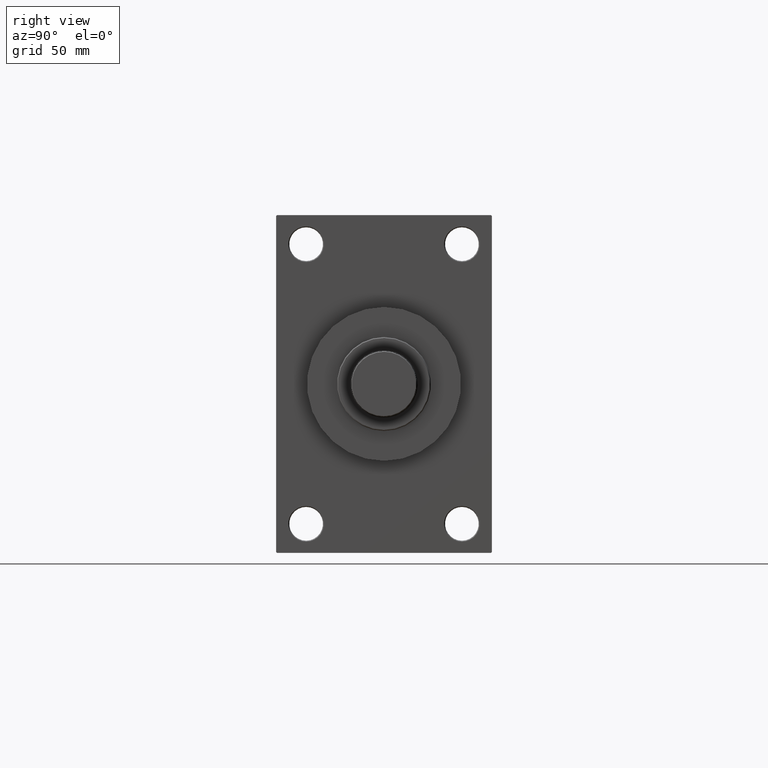
[diagram: clean part render]
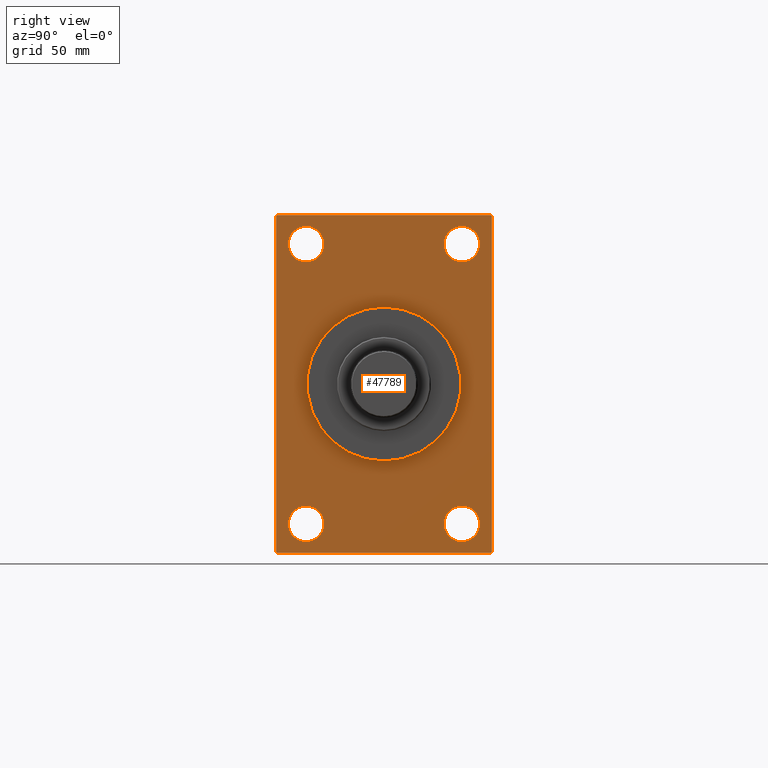
[diagram: same view with one face highlighted and labeled with its STEP entity id]
A machine part, right view. The second image highlights one B-rep face of the part: STEP entity #47789.
In plain terms, the highlighted planar face has unit normal (-1, 0, 0).
Its self-contained STEP definition (entity closure, byte-faithful):
#617 = CARTESIAN_POINT ( 'NONE',  ( 218.9999999999999716, 41.49999999999999289, 65.00000000000011369 ) ) ;
#693 = VERTEX_POINT ( 'NONE', #33230 ) ;
#805 = CARTESIAN_POINT ( 'NONE',  ( 218.9999999999999716, -57.50000000000000000, 90.00000000000000000 ) ) ;
#810 = DIRECTION ( 'NONE',  ( 0.000000000000000000, 0.000000000000000000, 1.000000000000000000 ) ) ;
#1096 = CIRCLE ( 'NONE', #46957, 41.00000000000000000 ) ;
#1108 = LINE ( 'NONE', #44933, #26154 ) ;
#1385 = ORIENTED_EDGE ( 'NONE', *, *, #24750, .T. ) ;
#1878 = EDGE_CURVE ( 'NONE', #3212, #36884, #13447, .T. ) ;
#2419 = CARTESIAN_POINT ( 'NONE',  ( 218.9999999999999716, 41.49999999999999289, 83.99999999999991473 ) ) ;
#3212 = VERTEX_POINT ( 'NONE', #38403 ) ;
#4028 = LINE ( 'NONE', #37607, #23377 ) ;
#4260 = DIRECTION ( 'NONE',  ( 0.000000000000000000, -1.000000000000000000, 0.000000000000000000 ) ) ;
#4448 = DIRECTION ( 'NONE',  ( -1.000000000000000000, -0.000000000000000000, -0.000000000000000000 ) ) ;
#4660 = CIRCLE ( 'NONE', #41986, 9.499999999999980460 ) ;
#5087 = ORIENTED_EDGE ( 'NONE', *, *, #29829, .T. ) ;
#5157 = CARTESIAN_POINT ( 'NONE',  ( 218.9999999999999716, -56.99999999999997158, -90.00000000000000000 ) ) ;
#5437 = VERTEX_POINT ( 'NONE', #39031 ) ;
#5476 = LINE ( 'NONE', #13254, #37720 ) ;
#6709 = CARTESIAN_POINT ( 'NONE',  ( 218.9999999999999716, 56.99999999999994316, -90.00000000000000000 ) ) ;
#7332 = ORIENTED_EDGE ( 'NONE', *, *, #21273, .T. ) ;
#8671 = FACE_BOUND ( 'NONE', #38675, .T. ) ;
#8806 = AXIS2_PLACEMENT_3D ( 'NONE', #15628, #44850, #19541 ) ;
#8872 = AXIS2_PLACEMENT_3D ( 'NONE', #42550, #41844, #9204 ) ;
#9204 = DIRECTION ( 'NONE',  ( 0.000000000000000000, 0.000000000000000000, 1.000000000000000000 ) ) ;
#9211 = VECTOR ( 'NONE', #15640, 1000.000000000000000 ) ;
#9282 = AXIS2_PLACEMENT_3D ( 'NONE', #27912, #45686, #12313 ) ;
#9495 = EDGE_CURVE ( 'NONE', #37061, #44568, #1108, .T. ) ;
#9554 = CARTESIAN_POINT ( 'NONE',  ( 218.9999999999999716, 0.000000000000000000, 0.000000000000000000 ) ) ;
#9972 = VERTEX_POINT ( 'NONE', #11877 ) ;
#10176 = CARTESIAN_POINT ( 'NONE',  ( 218.9999999999999716, -41.50000000000000711, -83.99999999999995737 ) ) ;
#10499 = VERTEX_POINT ( 'NONE', #25913 ) ;
#10555 = CARTESIAN_POINT ( 'NONE',  ( 218.9999999999999716, 57.50000000000000000, 89.49999999999997158 ) ) ;
#10678 = ORIENTED_EDGE ( 'NONE', *, *, #18555, .T. ) ;
#11009 = AXIS2_PLACEMENT_3D ( 'NONE', #12737, #46107, #42201 ) ;
#11467 = CIRCLE ( 'NONE', #16917, 9.499999999999980460 ) ;
#11580 = DIRECTION ( 'NONE',  ( 0.000000000000000000, -1.000000000000000000, 0.000000000000000000 ) ) ;
#11735 = EDGE_CURVE ( 'NONE', #25385, #37267, #21576, .T. ) ;
#11877 = CARTESIAN_POINT ( 'NONE',  ( 218.9999999999999716, 41.49999999999999289, -65.00000000000000000 ) ) ;
#11902 = CARTESIAN_POINT ( 'NONE',  ( 218.9999999999999716, 41.49999999999999289, -74.49999999999998579 ) ) ;
#11986 = CIRCLE ( 'NONE', #8872, 9.499999999999896971 ) ;
#12313 = DIRECTION ( 'NONE',  ( -0.000000000000000000, 0.000000000000000000, 1.000000000000000000 ) ) ;
#12473 = VERTEX_POINT ( 'NONE', #617 ) ;
#12667 = EDGE_CURVE ( 'NONE', #14865, #44568, #27338, .T. ) ;
#12737 = CARTESIAN_POINT ( 'NONE',  ( 218.9999999999999716, 41.49999999999999289, 74.50000000000001421 ) ) ;
#12799 = VERTEX_POINT ( 'NONE', #38748 ) ;
#13254 = CARTESIAN_POINT ( 'NONE',  ( 218.9999999999999716, 57.50000000000000000, -89.49999999999994316 ) ) ;
#13447 = CIRCLE ( 'NONE', #8806, 9.499999999999896971 ) ;
#13628 = DIRECTION ( 'NONE',  ( -1.000000000000000000, -0.000000000000000000, -0.000000000000000000 ) ) ;
#14727 = LINE ( 'NONE', #44911, #47757 ) ;
#14865 = VERTEX_POINT ( 'NONE', #24310 ) ;
#14893 = DIRECTION ( 'NONE',  ( 1.000000000000000000, 0.000000000000000000, 0.000000000000000000 ) ) ;
#15460 = AXIS2_PLACEMENT_3D ( 'NONE', #27103, #4448, #810 ) ;
#15623 = DIRECTION ( 'NONE',  ( 0.000000000000000000, 0.000000000000000000, -1.000000000000000000 ) ) ;
#15628 = CARTESIAN_POINT ( 'NONE',  ( 218.9999999999999716, -41.50000000000000711, 74.50000000000001421 ) ) ;
#15640 = DIRECTION ( 'NONE',  ( 0.000000000000000000, 0.000000000000000000, -1.000000000000000000 ) ) ;
#15838 = EDGE_CURVE ( 'NONE', #22767, #9972, #11467, .T. ) ;
#16208 = FACE_BOUND ( 'NONE', #21713, .T. ) ;
#16594 = CARTESIAN_POINT ( 'NONE',  ( 218.9999999999999716, 41.49999999999999289, -83.99999999999995737 ) ) ;
#16917 = AXIS2_PLACEMENT_3D ( 'NONE', #24610, #13628, #28499 ) ;
#17108 = DIRECTION ( 'NONE',  ( 0.000000000000000000, 0.000000000000000000, -1.000000000000000000 ) ) ;
#17126 = CARTESIAN_POINT ( 'NONE',  ( 218.9999999999999716, -41.50000000000000711, -74.49999999999998579 ) ) ;
#17676 = EDGE_CURVE ( 'NONE', #43424, #14865, #34153, .T. ) ;
#18003 = AXIS2_PLACEMENT_3D ( 'NONE', #18565, #14893, #15623 ) ;
#18226 = ORIENTED_EDGE ( 'NONE', *, *, #27928, .T. ) ;
#18289 = VERTEX_POINT ( 'NONE', #10555 ) ;
#18294 = CARTESIAN_POINT ( 'NONE',  ( 218.9999999999999716, -56.99999999999994316, 90.00000000000000000 ) ) ;
#18555 = EDGE_CURVE ( 'NONE', #37267, #25385, #33333, .T. ) ;
#18565 = CARTESIAN_POINT ( 'NONE',  ( 218.9999999999999716, 0.000000000000000000, 0.000000000000000000 ) ) ;
#19541 = DIRECTION ( 'NONE',  ( 0.000000000000000000, 0.000000000000000000, 1.000000000000000000 ) ) ;
#19614 = VERTEX_POINT ( 'NONE', #18294 ) ;
#19883 = FACE_BOUND ( 'NONE', #46735, .T. ) ;
#19956 = ORIENTED_EDGE ( 'NONE', *, *, #1878, .T. ) ;
#20240 = ORIENTED_EDGE ( 'NONE', *, *, #11735, .T. ) ;
#20346 = DIRECTION ( 'NONE',  ( -0.000000000000000000, 0.7071067811865474617, 0.7071067811865474617 ) ) ;
#20350 = CIRCLE ( 'NONE', #11009, 9.499999999999896971 ) ;
#20519 = ORIENTED_EDGE ( 'NONE', *, *, #25050, .F. ) ;
#20603 = PLANE ( 'NONE',  #9282 ) ;
#20630 = EDGE_CURVE ( 'NONE', #9972, #22767, #4660, .T. ) ;
#20935 = ORIENTED_EDGE ( 'NONE', *, *, #12667, .T. ) ;
#21273 = EDGE_CURVE ( 'NONE', #10499, #19614, #4028, .T. ) ;
#21576 = CIRCLE ( 'NONE', #22363, 9.499999999999980460 ) ;
#21602 = VECTOR ( 'NONE', #23680, 1000.000000000000114 ) ;
#21713 = EDGE_LOOP ( 'NONE', ( #1385, #23308 ) ) ;
#22168 = CARTESIAN_POINT ( 'NONE',  ( 218.9999999999999716, -57.50000000000000000, 89.49999999999994316 ) ) ;
#22363 = AXIS2_PLACEMENT_3D ( 'NONE', #17126, #48022, #37307 ) ;
#22767 = VERTEX_POINT ( 'NONE', #16594 ) ;
#23308 = ORIENTED_EDGE ( 'NONE', *, *, #31063, .T. ) ;
#23377 = VECTOR ( 'NONE', #4260, 1000.000000000000000 ) ;
#23680 = DIRECTION ( 'NONE',  ( 0.000000000000000000, 0.7071067811865474617, -0.7071067811865474617 ) ) ;
#24059 = CARTESIAN_POINT ( 'NONE',  ( 218.9999999999999716, -56.99999999999997158, -90.00000000000000000 ) ) ;
#24310 = CARTESIAN_POINT ( 'NONE',  ( 218.9999999999999716, -57.50000000000000000, -89.49999999999991473 ) ) ;
#24610 = CARTESIAN_POINT ( 'NONE',  ( 218.9999999999999716, 41.49999999999999289, -74.49999999999998579 ) ) ;
#24750 = EDGE_CURVE ( 'NONE', #12473, #29269, #20350, .T. ) ;
#24851 = ORIENTED_EDGE ( 'NONE', *, *, #17676, .T. ) ;
#25050 = EDGE_CURVE ( 'NONE', #693, #12799, #40547, .T. ) ;
#25385 = VERTEX_POINT ( 'NONE', #10176 ) ;
#25913 = CARTESIAN_POINT ( 'NONE',  ( 218.9999999999999716, 56.99999999999997158, 90.00000000000000000 ) ) ;
#26154 = VECTOR ( 'NONE', #11580, 1000.000000000000000 ) ;
#26781 = DIRECTION ( 'NONE',  ( -1.000000000000000000, -0.000000000000000000, -0.000000000000000000 ) ) ;
#26830 = DIRECTION ( 'NONE',  ( 0.000000000000000000, 0.000000000000000000, -1.000000000000000000 ) ) ;
#27103 = CARTESIAN_POINT ( 'NONE',  ( 218.9999999999999716, -41.50000000000000711, -74.49999999999998579 ) ) ;
#27338 = LINE ( 'NONE', #5157, #21602 ) ;
#27820 = EDGE_CURVE ( 'NONE', #18289, #10499, #14727, .T. ) ;
#27912 = CARTESIAN_POINT ( 'NONE',  ( 218.9999999999999716, 0.000000000000000000, 0.000000000000000000 ) ) ;
#27928 = EDGE_CURVE ( 'NONE', #36884, #3212, #36079, .T. ) ;
#28394 = ORIENTED_EDGE ( 'NONE', *, *, #27820, .T. ) ;
#28499 = DIRECTION ( 'NONE',  ( 0.000000000000000000, 0.000000000000000000, 1.000000000000000000 ) ) ;
#28824 = LINE ( 'NONE', #35208, #32609 ) ;
#29269 = VERTEX_POINT ( 'NONE', #2419 ) ;
#29829 = EDGE_CURVE ( 'NONE', #37061, #5437, #5476, .T. ) ;
#30483 = LINE ( 'NONE', #45325, #44940 ) ;
#30839 = FACE_OUTER_BOUND ( 'NONE', #36722, .T. ) ;
#30945 = ORIENTED_EDGE ( 'NONE', *, *, #42910, .T. ) ;
#31012 = ORIENTED_EDGE ( 'NONE', *, *, #40826, .F. ) ;
#31031 = CARTESIAN_POINT ( 'NONE',  ( 218.9999999999999716, -41.50000000000000711, 74.50000000000001421 ) ) ;
#31063 = EDGE_CURVE ( 'NONE', #29269, #12473, #11986, .T. ) ;
#31092 = CARTESIAN_POINT ( 'NONE',  ( 218.9999999999999716, -41.50000000000000711, 65.00000000000011369 ) ) ;
#31527 = EDGE_CURVE ( 'NONE', #12799, #693, #1096, .T. ) ;
#32609 = VECTOR ( 'NONE', #47778, 1000.000000000000114 ) ;
#33230 = CARTESIAN_POINT ( 'NONE',  ( 218.9999999999999716, 0.000000000000000000, 41.00000000000000000 ) ) ;
#33333 = CIRCLE ( 'NONE', #15460, 9.499999999999980460 ) ;
#34153 = LINE ( 'NONE', #805, #9211 ) ;
#34910 = DIRECTION ( 'NONE',  ( 0.000000000000000000, 0.000000000000000000, 1.000000000000000000 ) ) ;
#34955 = EDGE_LOOP ( 'NONE', ( #18226, #19956 ) ) ;
#35199 = ORIENTED_EDGE ( 'NONE', *, *, #9495, .F. ) ;
#35208 = CARTESIAN_POINT ( 'NONE',  ( 218.9999999999999716, -57.50000000000000000, 89.49999999999994316 ) ) ;
#36079 = CIRCLE ( 'NONE', #43094, 9.499999999999896971 ) ;
#36722 = EDGE_LOOP ( 'NONE', ( #24851, #20935, #35199, #5087, #31012, #28394, #7332, #30945 ) ) ;
#36884 = VERTEX_POINT ( 'NONE', #31092 ) ;
#37061 = VERTEX_POINT ( 'NONE', #6709 ) ;
#37267 = VERTEX_POINT ( 'NONE', #44382 ) ;
#37307 = DIRECTION ( 'NONE',  ( 0.000000000000000000, 0.000000000000000000, 1.000000000000000000 ) ) ;
#37607 = CARTESIAN_POINT ( 'NONE',  ( 218.9999999999999716, 57.50000000000000000, 90.00000000000000000 ) ) ;
#37720 = VECTOR ( 'NONE', #20346, 1000.000000000000114 ) ;
#38403 = CARTESIAN_POINT ( 'NONE',  ( 218.9999999999999716, -41.50000000000000711, 83.99999999999991473 ) ) ;
#38675 = EDGE_LOOP ( 'NONE', ( #45538, #46503 ) ) ;
#38748 = CARTESIAN_POINT ( 'NONE',  ( 218.9999999999999716, 5.021051876504148963E-15, -41.00000000000000000 ) ) ;
#39031 = CARTESIAN_POINT ( 'NONE',  ( 218.9999999999999716, 57.50000000000000000, -89.49999999999988631 ) ) ;
#39253 = DIRECTION ( 'NONE',  ( 1.000000000000000000, 0.000000000000000000, 0.000000000000000000 ) ) ;
#39426 = ORIENTED_EDGE ( 'NONE', *, *, #31527, .F. ) ;
#40547 = CIRCLE ( 'NONE', #18003, 41.00000000000000000 ) ;
#40826 = EDGE_CURVE ( 'NONE', #18289, #5437, #30483, .T. ) ;
#41615 = DIRECTION ( 'NONE',  ( 0.000000000000000000, 0.000000000000000000, 1.000000000000000000 ) ) ;
#41844 = DIRECTION ( 'NONE',  ( -1.000000000000000000, -0.000000000000000000, -0.000000000000000000 ) ) ;
#41986 = AXIS2_PLACEMENT_3D ( 'NONE', #11902, #26781, #41615 ) ;
#42201 = DIRECTION ( 'NONE',  ( 0.000000000000000000, 0.000000000000000000, 1.000000000000000000 ) ) ;
#42550 = CARTESIAN_POINT ( 'NONE',  ( 218.9999999999999716, 41.49999999999999289, 74.50000000000001421 ) ) ;
#42910 = EDGE_CURVE ( 'NONE', #19614, #43424, #28824, .T. ) ;
#42967 = FACE_BOUND ( 'NONE', #43318, .T. ) ;
#43094 = AXIS2_PLACEMENT_3D ( 'NONE', #31031, #46114, #34910 ) ;
#43318 = EDGE_LOOP ( 'NONE', ( #20519, #39426 ) ) ;
#43424 = VERTEX_POINT ( 'NONE', #22168 ) ;
#44195 = DIRECTION ( 'NONE',  ( 0.000000000000000000, -0.7071067811865474617, 0.7071067811865474617 ) ) ;
#44382 = CARTESIAN_POINT ( 'NONE',  ( 218.9999999999999716, -41.50000000000000711, -65.00000000000000000 ) ) ;
#44568 = VERTEX_POINT ( 'NONE', #24059 ) ;
#44850 = DIRECTION ( 'NONE',  ( -1.000000000000000000, -0.000000000000000000, -0.000000000000000000 ) ) ;
#44911 = CARTESIAN_POINT ( 'NONE',  ( 218.9999999999999716, 56.99999999999997158, 90.00000000000000000 ) ) ;
#44933 = CARTESIAN_POINT ( 'NONE',  ( 218.9999999999999716, 57.50000000000000000, -90.00000000000000000 ) ) ;
#44940 = VECTOR ( 'NONE', #26830, 1000.000000000000000 ) ;
#45325 = CARTESIAN_POINT ( 'NONE',  ( 218.9999999999999716, 57.50000000000000000, 90.00000000000000000 ) ) ;
#45538 = ORIENTED_EDGE ( 'NONE', *, *, #15838, .T. ) ;
#45686 = DIRECTION ( 'NONE',  ( -1.000000000000000000, 0.000000000000000000, -0.000000000000000000 ) ) ;
#46107 = DIRECTION ( 'NONE',  ( -1.000000000000000000, -0.000000000000000000, -0.000000000000000000 ) ) ;
#46114 = DIRECTION ( 'NONE',  ( -1.000000000000000000, -0.000000000000000000, -0.000000000000000000 ) ) ;
#46397 = FACE_BOUND ( 'NONE', #34955, .T. ) ;
#46503 = ORIENTED_EDGE ( 'NONE', *, *, #20630, .T. ) ;
#46735 = EDGE_LOOP ( 'NONE', ( #20240, #10678 ) ) ;
#46957 = AXIS2_PLACEMENT_3D ( 'NONE', #9554, #39253, #17108 ) ;
#47757 = VECTOR ( 'NONE', #44195, 1000.000000000000114 ) ;
#47778 = DIRECTION ( 'NONE',  ( -0.000000000000000000, -0.7071067811865474617, -0.7071067811865474617 ) ) ;
#47789 = ADVANCED_FACE ( 'NONE', ( #46397, #19883, #8671, #16208, #42967, #30839 ), #20603, .F. ) ;
#48022 = DIRECTION ( 'NONE',  ( -1.000000000000000000, -0.000000000000000000, -0.000000000000000000 ) ) ;